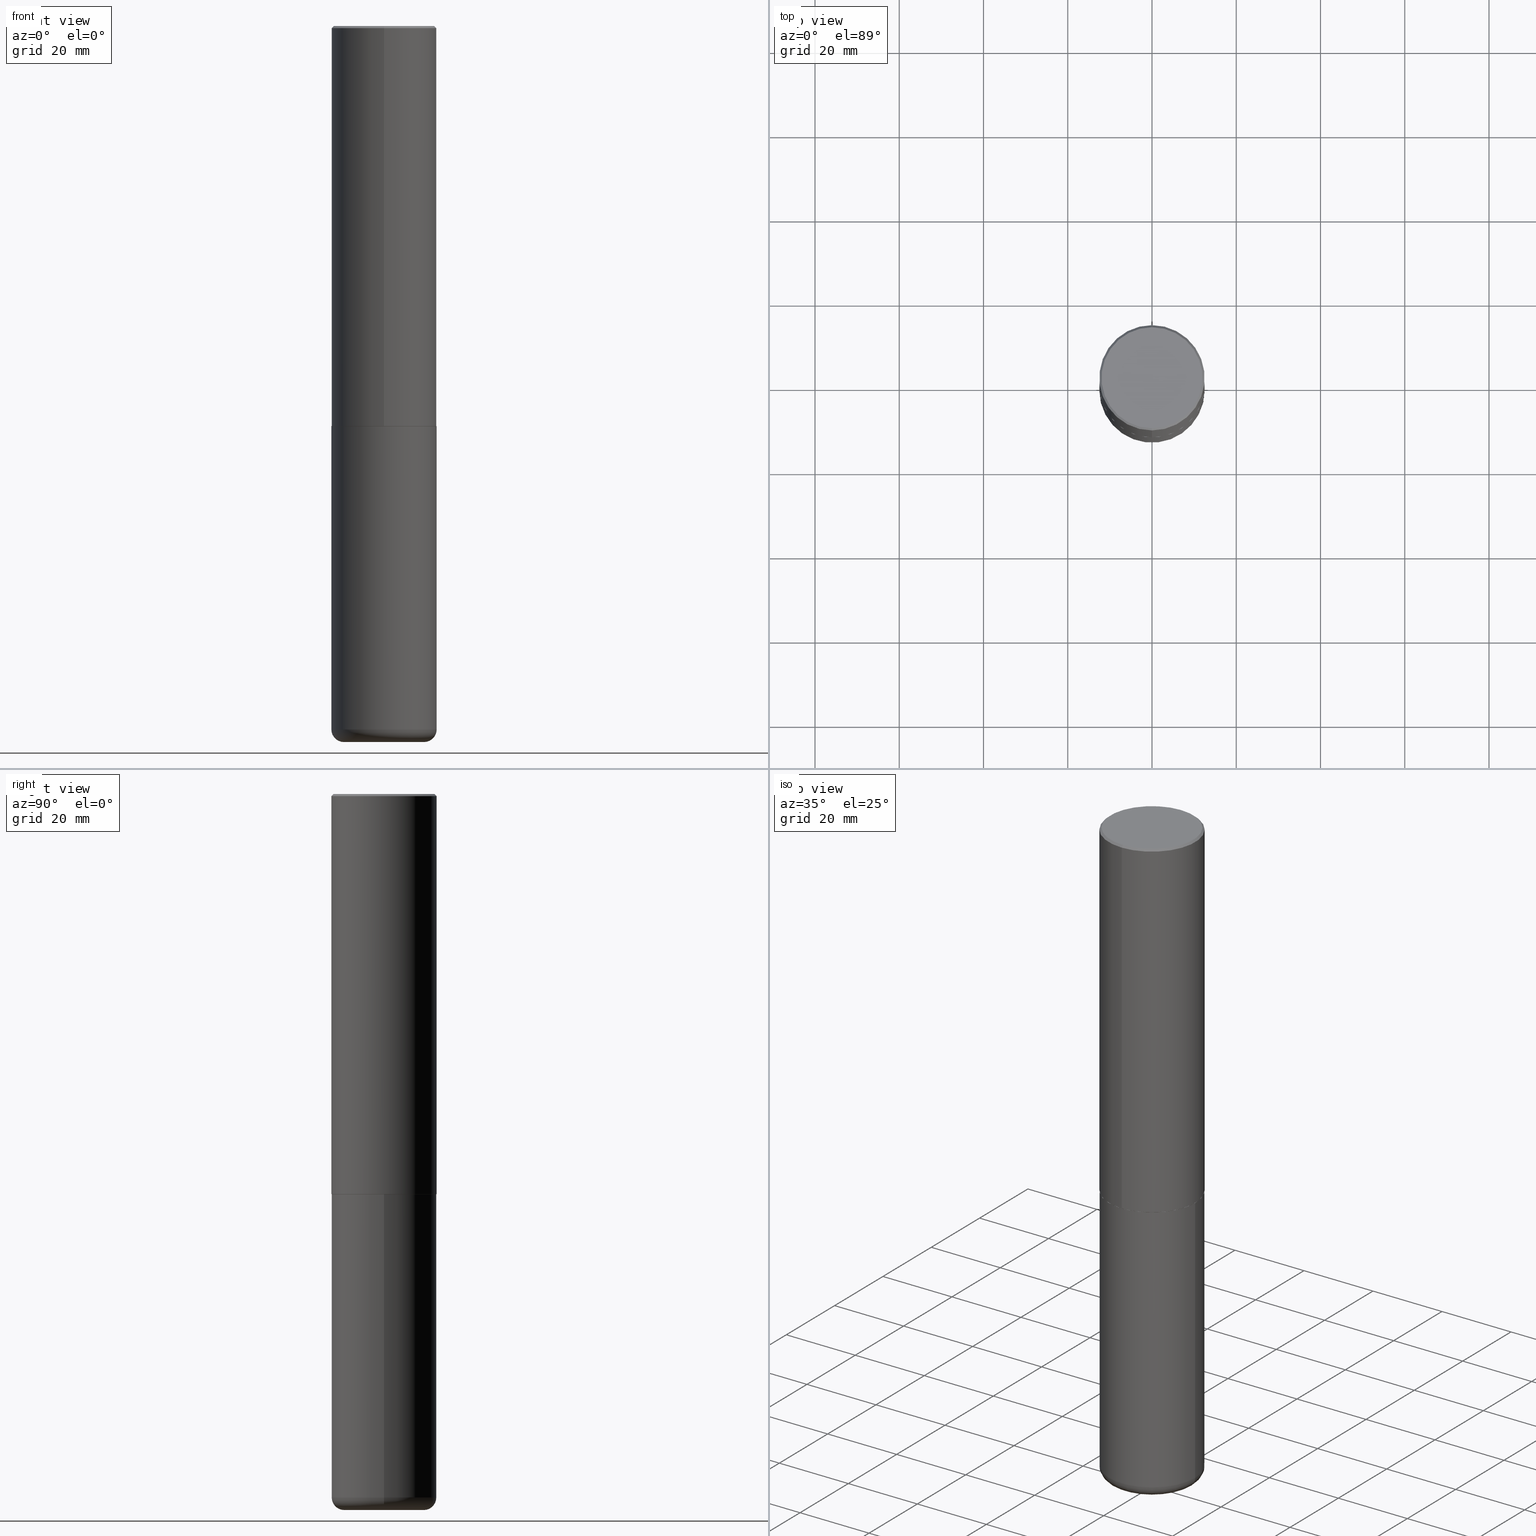
[diagram: canonical four-view strip — front | top / right | iso, engineering-drawing reading convention]
A machine part, canonical four-view strip (front | top / right | iso — engineering-drawing reading convention). The complete STEP part file that produces these views, byte-faithful:
ISO-10303-21;
HEADER;
FILE_DESCRIPTION (( 'STEP AP203' ),
    '1' );
FILE_NAME ('47625.STEP',
    '2024-03-06T19:43:26',
    ( '' ),
    ( '' ),
    'SwSTEP 2.0',
    'SolidWorks 2023',
    '' );
FILE_SCHEMA (( 'CONFIG_CONTROL_DESIGN' ));
ENDSEC;

DATA;
#1 = ORIENTED_EDGE ( 'NONE', *, *, #39, .T. ) ;
#2 = DIRECTION ( 'NONE',  ( -2.445468806185136597E-29, 3.491481338843145583E-15, 1.000000000000000000 ) ) ;
#3 = VERTEX_POINT ( 'NONE', #71 ) ;
#4 = DIRECTION ( 'NONE',  ( 2.438088387897960049E-29, -3.491481338843145188E-15, -1.000000000000000000 ) ) ;
#5 = AXIS2_PLACEMENT_3D ( 'NONE', #241, #147, #365 ) ;
#6 = ORIENTED_EDGE ( 'NONE', *, *, #307, .F. ) ;
#7 = APPROVAL_DATE_TIME ( #145, #360 ) ;
#8 = ADVANCED_FACE ( 'NONE', ( #265 ), #13, .T. ) ;
#9 = ORIENTED_EDGE ( 'NONE', *, *, #59, .F. ) ;
#10 = CARTESIAN_POINT ( 'NONE',  ( 9.146297882013029477E-29, -1.305848935540725085E-14, -3.740100000000000424 ) ) ;
#11 = CARTESIAN_POINT ( 'NONE',  ( 9.148197060908621523E-29, -1.305576962313420868E-14, -3.740099999999999980 ) ) ;
#12 = CIRCLE ( 'NONE', #33, 0.4721499999999996255 ) ;
#13 = TOROIDAL_SURFACE ( 'NONE', #284, 0.3740499999999999381, 0.1181000000000000660 ) ;
#14 = AXIS2_PLACEMENT_3D ( 'NONE', #218, #257, #93 ) ;
#15 = EDGE_CURVE ( 'NONE', #327, #346, #12, .T. ) ;
#16 = DIRECTION ( 'NONE',  ( -2.445976594451651952E-29, 3.490754157143982552E-15, 1.000000000000000000 ) ) ;
#17 = PLANE ( 'NONE',  #383 ) ;
#18 = PRODUCT_DEFINITION ( 'UNKNOWN', '', #179, #183 ) ;
#19 = CARTESIAN_POINT ( 'NONE',  ( 0.4921499999999999764, -3.436665081823295777E-15, 2.399810400207969603E-29 ) ) ;
#20 = AXIS2_PLACEMENT_3D ( 'NONE', #315, #377, #53 ) ;
#21 = LOCAL_TIME ( 14, 43, 26.00000000000000000, #350 ) ;
#22 = DIRECTION ( 'NONE',  ( -6.982962677686265922E-15, -1.000000000000000000, 3.490754157143982946E-15 ) ) ;
#23 = CARTESIAN_POINT ( 'NONE',  ( 1.607846830690603466E-28, -2.295579150662591525E-14, -6.574799999999999756 ) ) ;
#24 = ORIENTED_EDGE ( 'NONE', *, *, #326, .F. ) ;
#25 = LINE ( 'NONE', #219, #363 ) ;
#26 = CC_DESIGN_PERSON_AND_ORGANIZATION_ASSIGNMENT ( #361, #40, ( #179 ) ) ;
#27 = CARTESIAN_POINT ( 'NONE',  ( -3.376394089603257868E-15, -0.4921499999999999764, -0.01999999999999839059 ) ) ;
#28 = CARTESIAN_POINT ( 'NONE',  ( 9.148197060908621523E-29, -1.305576962313420868E-14, -3.740099999999999980 ) ) ;
#29 = PERSON_AND_ORGANIZATION ( #347, #369 ) ;
#30 = EDGE_LOOP ( 'NONE', ( #38, #205, #190, #207 ) ) ;
#31 = ADVANCED_BREP_SHAPE_REPRESENTATION ( '47625', ( #328, #52, #255 ), #195 ) ;
#32 = FACE_OUTER_BOUND ( 'NONE', #394, .T. ) ;
#33 = AXIS2_PLACEMENT_3D ( 'NONE', #165, #290, #44 ) ;
#34 = EDGE_LOOP ( 'NONE', ( #233, #9 ) ) ;
#35 = DIRECTION ( 'NONE',  ( 1.000000000000000000, 0.000000000000000000, 0.000000000000000000 ) ) ;
#36 = EDGE_LOOP ( 'NONE', ( #272, #378 ) ) ;
#37 = LENGTH_MEASURE_WITH_UNIT ( LENGTH_MEASURE( 0.02539999999999999897 ), #65 );
#38 = ORIENTED_EDGE ( 'NONE', *, *, #366, .T. ) ;
#39 = EDGE_CURVE ( 'NONE', #391, #294, #398, .T. ) ;
#40 = PERSON_AND_ORGANIZATION_ROLE ( 'design_supplier' ) ;
#41 = AXIS2_PLACEMENT_3D ( 'NONE', #23, #316, #338 ) ;
#42 = DIRECTION ( 'NONE',  ( 1.000000000000000000, -6.982962677686266711E-15, 4.883557194083112340E-29 ) ) ;
#43 = APPROVAL_PERSON_ORGANIZATION ( #344, #283, #188 ) ;
#44 = DIRECTION ( 'NONE',  ( -6.982962677686265922E-15, -1.000000000000000000, 3.490754157143982946E-15 ) ) ;
#45 = CC_DESIGN_PERSON_AND_ORGANIZATION_ASSIGNMENT ( #229, #98, ( #18 ) ) ;
#46 = DIRECTION ( 'NONE',  ( -6.982962677686265922E-15, -1.000000000000000000, 3.486624039460257331E-15 ) ) ;
#47 = CARTESIAN_POINT ( 'NONE',  ( 4.891953188903329688E-31, -6.981508314288001687E-17, -0.02000000000000010797 ) ) ;
#48 = AXIS2_PLACEMENT_3D ( 'NONE', #158, #186, #250 ) ;
#49 = CARTESIAN_POINT ( 'NONE',  ( 9.148197060908621523E-29, -1.305576962313420868E-14, -3.740099999999999980 ) ) ;
#50 = EDGE_CURVE ( 'NONE', #94, #359, #194, .T. ) ;
#51 = CARTESIAN_POINT ( 'NONE',  ( 1.607846830690603466E-28, -2.295579150662591525E-14, -6.574799999999999756 ) ) ;
#52 = MANIFOLD_SOLID_BREP ( 'Body-Move/Copy2[2]', #375 ) ;
#53 = DIRECTION ( 'NONE',  ( -6.982962677686265922E-15, -1.000000000000000000, 3.330506545156063496E-15 ) ) ;
#54 = AXIS2_PLACEMENT_3D ( 'NONE', #285, #156, #196 ) ;
#55 = APPROVAL_PERSON_ORGANIZATION ( #29, #360, #262 ) ;
#56 = LINE ( 'NONE', #225, #153 ) ;
#57 = VERTEX_POINT ( 'NONE', #114 ) ;
#58 = CARTESIAN_POINT ( 'NONE',  ( 0.4921499999999999764, -1.649515443723054663E-14, -3.740100000000000424 ) ) ;
#59 = EDGE_CURVE ( 'NONE', #356, #235, #368, .T. ) ;
#60 = CYLINDRICAL_SURFACE ( 'NONE', #339, 0.4921499999999999764 ) ;
#61 = CIRCLE ( 'NONE', #20, 0.4921500000000003650 ) ;
#62 = DIRECTION ( 'NONE',  ( 6.982962677686265922E-15, 1.000000000000000000, -3.490754157143982552E-15 ) ) ;
#63 = CALENDAR_DATE ( 2024, 6, 3 ) ;
#64 = ORIENTED_EDGE ( 'NONE', *, *, #236, .F. ) ;
#65 =( LENGTH_UNIT ( ) NAMED_UNIT ( * ) SI_UNIT ( $, .METRE. ) );
#66 = ORIENTED_EDGE ( 'NONE', *, *, #269, .T. ) ;
#67 = AXIS2_PLACEMENT_3D ( 'NONE', #402, #216, #82 ) ;
#68 = CIRCLE ( 'NONE', #213, 0.4721499999999996255 ) ;
#69 = ORIENTED_EDGE ( 'NONE', *, *, #355, .F. ) ;
#70 = DIRECTION ( 'NONE',  ( 1.000000000000000000, -6.982962677686265922E-15, 4.876176775795935793E-29 ) ) ;
#71 = CARTESIAN_POINT ( 'NONE',  ( -0.4921499999999999764, -1.451020435697325173E-14, -3.740100000000000424 ) ) ;
#72 = ADVANCED_FACE ( 'NONE', ( #212 ), #120, .T. ) ;
#73 = PERSON_AND_ORGANIZATION ( #347, #369 ) ;
#74 = ORIENTED_EDGE ( 'NONE', *, *, #39, .F. ) ;
#75 = COORDINATED_UNIVERSAL_TIME_OFFSET ( 5, 0, .BEHIND. ) ;
#76 = CIRCLE ( 'NONE', #297, 0.4911499999999999755 ) ;
#77 = DIRECTION ( 'NONE',  ( 1.000000000000000000, -6.982962677686270655E-15, 0.000000000000000000 ) ) ;
#78 = CC_DESIGN_APPROVAL ( #360, ( #179 ) ) ;
#79 = APPROVAL ( #204, 'UNSPECIFIED' ) ;
#80 = DIRECTION ( 'NONE',  ( 1.000000000000000000, -6.982962677686265922E-15, 0.000000000000000000 ) ) ;
#81 = LINE ( 'NONE', #19, #403 ) ;
#82 = DIRECTION ( 'NONE',  ( -6.982962677686265922E-15, -1.000000000000000000, 3.486624039460257331E-15 ) ) ;
#83 = CIRCLE ( 'NONE', #349, 0.3740499999999999381 ) ;
#84 = CARTESIAN_POINT ( 'NONE',  ( 0.3740499999999999381, -2.556776869621446119E-14, -6.574799999999999756 ) ) ;
#85 = EDGE_CURVE ( 'NONE', #318, #3, #415, .T. ) ;
#86 = DIRECTION ( 'NONE',  ( -6.982962677686265922E-15, -1.000000000000000000, 3.337287582609300506E-15 ) ) ;
#87 = APPROVAL_DATE_TIME ( #128, #283 ) ;
#88 = AXIS2_PLACEMENT_3D ( 'NONE', #337, #214, #276 ) ;
#89 = ADVANCED_FACE ( 'NONE', ( #278 ), #119, .T. ) ;
#90 = LINE ( 'NONE', #371, #148 ) ;
#91 = EDGE_LOOP ( 'NONE', ( #24, #228, #132, #351 ) ) ;
#92 = CARTESIAN_POINT ( 'NONE',  ( -0.3740499999999999381, -2.008460289110760576E-14, -6.692899999999999849 ) ) ;
#93 = DIRECTION ( 'NONE',  ( -6.982962677686265922E-15, -1.000000000000000000, 3.330506545156063496E-15 ) ) ;
#94 = VERTEX_POINT ( 'NONE', #244 ) ;
#95 = EDGE_CURVE ( 'NONE', #3, #318, #275, .T. ) ;
#96 = AXIS2_PLACEMENT_3D ( 'NONE', #84, #273, #77 ) ;
#97 = VECTOR ( 'NONE', #389, 39.37007874015748854 ) ;
#98 = PERSON_AND_ORGANIZATION_ROLE ( 'creator' ) ;
#99 = VERTEX_POINT ( 'NONE', #397 ) ;
#100 =( CONVERSION_BASED_UNIT ( 'INCH', #37 ) LENGTH_UNIT ( ) NAMED_UNIT ( #215 ) );
#101 = ORIENTED_EDGE ( 'NONE', *, *, #59, .T. ) ;
#102 = DIRECTION ( 'NONE',  ( 2.438088387897960049E-29, -3.491481338843145188E-15, -1.000000000000000000 ) ) ;
#103 = ORIENTED_EDGE ( 'NONE', *, *, #124, .T. ) ;
#104 = CIRCLE ( 'NONE', #14, 0.4921500000000003650 ) ;
#105 = LOCAL_TIME ( 14, 43, 26.00000000000000000, #372 ) ;
#106 = EDGE_CURVE ( 'NONE', #356, #263, #286, .T. ) ;
#107 = ORIENTED_EDGE ( 'NONE', *, *, #274, .F. ) ;
#108 = DIRECTION ( 'NONE',  ( 0.000000000000000000, 0.000000000000000000, 1.000000000000000000 ) ) ;
#109 = ORIENTED_EDGE ( 'NONE', *, *, #140, .F. ) ;
#110 = PERSON_AND_ORGANIZATION ( #347, #369 ) ;
#111 = FACE_OUTER_BOUND ( 'NONE', #231, .T. ) ;
#112 = EDGE_CURVE ( 'NONE', #327, #391, #396, .T. ) ;
#113 = AXIS2_PLACEMENT_3D ( 'NONE', #392, #102, #230 ) ;
#114 = CARTESIAN_POINT ( 'NONE',  ( -3.436665081823207030E-15, -0.4921500000000134101, -3.739099999999998758 ) ) ;
#115 = APPLICATION_CONTEXT ( 'configuration controlled 3d designs of mechanical parts and assemblies' ) ;
#116 = CARTESIAN_POINT ( 'NONE',  ( 1.636727817291649966E-28, -2.336813545274328780E-14, -6.692899999999999849 ) ) ;
#117 = DIRECTION ( 'NONE',  ( 7.105427357601001859E-15, 1.000000000000000000, -3.491481338843145583E-15 ) ) ;
#118 = ADVANCED_FACE ( 'NONE', ( #111 ), #243, .T. ) ;
#119 = CYLINDRICAL_SURFACE ( 'NONE', #88, 0.4921499999999999764 ) ;
#120 = CONICAL_SURFACE ( 'NONE', #143, 0.4911499999999999755, 0.7853981633980288146 ) ;
#121 = FACE_OUTER_BOUND ( 'NONE', #292, .T. ) ;
#122 = CARTESIAN_POINT ( 'NONE',  ( 9.148197060908621523E-29, -1.305576962313420868E-14, -3.740099999999999980 ) ) ;
#123 = CALENDAR_DATE ( 2024, 6, 3 ) ;
#124 = EDGE_CURVE ( 'NONE', #235, #99, #310, .T. ) ;
#125 = DIRECTION ( 'NONE',  ( -6.982962677686265922E-15, -1.000000000000000000, 3.337287582609300506E-15 ) ) ;
#126 = AXIS2_PLACEMENT_3D ( 'NONE', #335, #210, #80 ) ;
#127 = CARTESIAN_POINT ( 'NONE',  ( 4.891953188903329688E-31, -6.981508314288001687E-17, -0.02000000000000010797 ) ) ;
#128 = DATE_AND_TIME ( #123, #105 ) ;
#129 = FACE_OUTER_BOUND ( 'NONE', #325, .T. ) ;
#130 = EDGE_CURVE ( 'NONE', #263, #3, #182, .T. ) ;
#131 = DATE_TIME_ROLE ( 'classification_date' ) ;
#132 = ORIENTED_EDGE ( 'NONE', *, *, #173, .T. ) ;
#133 = PRODUCT_DEFINITION_SHAPE ( 'NONE', 'NONE',  #18 ) ;
#134 = MECHANICAL_CONTEXT ( 'NONE', #115, 'mechanical' ) ;
#135 = AXIS2_PLACEMENT_3D ( 'NONE', #184, #117, #364 ) ;
#136 = ORIENTED_EDGE ( 'NONE', *, *, #248, .T. ) ;
#137 = DATE_TIME_ROLE ( 'creation_date' ) ;
#138 = APPLICATION_CONTEXT ( 'configuration controlled 3d designs of mechanical parts and assemblies' ) ;
#139 = ORIENTED_EDGE ( 'NONE', *, *, #307, .T. ) ;
#140 = EDGE_CURVE ( 'NONE', #263, #99, #303, .T. ) ;
#141 = APPROVAL_DATE_TIME ( #293, #79 ) ;
#142 = ORIENTED_EDGE ( 'NONE', *, *, #95, .T. ) ;
#143 = AXIS2_PLACEMENT_3D ( 'NONE', #11, #16, #211 ) ;
#144 = EDGE_LOOP ( 'NONE', ( #417, #171, #358, #270 ) ) ;
#145 = DATE_AND_TIME ( #352, #226 ) ;
#146 = EDGE_LOOP ( 'NONE', ( #321, #353, #267, #1 ) ) ;
#147 = DIRECTION ( 'NONE',  ( -2.445976594451651952E-29, 3.490754157143982552E-15, 1.000000000000000000 ) ) ;
#148 = VECTOR ( 'NONE', #221, 39.37007874015748143 ) ;
#149 = DIRECTION ( 'NONE',  ( 1.000000000000000000, -6.982962677686265133E-15, 0.000000000000000000 ) ) ;
#150 = DIRECTION ( 'NONE',  ( 1.000000000000000000, -6.982962677686265922E-15, 0.000000000000000000 ) ) ;
#151 = DIRECTION ( 'NONE',  ( -2.445976594451651952E-29, 3.490754157143982552E-15, 1.000000000000000000 ) ) ;
#152 = FACE_OUTER_BOUND ( 'NONE', #146, .T. ) ;
#153 = VECTOR ( 'NONE', #281, 39.37007874015748143 ) ;
#154 = CARTESIAN_POINT ( 'NONE',  ( 3.366835455046432084E-15, 0.4721499999999996255, -1.426540264649568516E-15 ) ) ;
#155 = ADVANCED_FACE ( 'NONE', ( #238 ), #178, .T. ) ;
#156 = DIRECTION ( 'NONE',  ( -2.445976594451651952E-29, 3.490754157143982552E-15, 1.000000000000000000 ) ) ;
#157 = ORIENTED_EDGE ( 'NONE', *, *, #50, .F. ) ;
#158 = CARTESIAN_POINT ( 'NONE',  ( 1.607846830690603466E-28, -2.295579150662591525E-14, -6.574799999999999756 ) ) ;
#159 = CIRCLE ( 'NONE', #334, 0.4921499999999999209 ) ;
#160 = CC_DESIGN_APPROVAL ( #283, ( #416 ) ) ;
#161 = FACE_OUTER_BOUND ( 'NONE', #192, .T. ) ;
#162 = ORIENTED_EDGE ( 'NONE', *, *, #242, .F. ) ;
#163 = CC_DESIGN_PERSON_AND_ORGANIZATION_ASSIGNMENT ( #170, #258, ( #220 ) ) ;
#164 =( NAMED_UNIT ( * ) PLANE_ANGLE_UNIT ( ) SI_UNIT ( $, .RADIAN. ) );
#165 = CARTESIAN_POINT ( 'NONE',  ( -5.420756467185317189E-45, 7.736185299407739239E-31, 2.216193106459615290E-16 ) ) ;
#166 = AXIS2_PLACEMENT_3D ( 'NONE', #387, #4, #354 ) ;
#167 = PLANE ( 'NONE',  #166 ) ;
#168 = ORIENTED_EDGE ( 'NONE', *, *, #274, .T. ) ;
#169 = ADVANCED_FACE ( 'NONE', ( #306 ), #17, .F. ) ;
#170 = PERSON_AND_ORGANIZATION ( #347, #369 ) ;
#171 = ORIENTED_EDGE ( 'NONE', *, *, #140, .T. ) ;
#172 = EDGE_LOOP ( 'NONE', ( #6, #157 ) ) ;
#173 = EDGE_CURVE ( 'NONE', #294, #391, #159, .T. ) ;
#174 = PERSON_AND_ORGANIZATION ( #347, #369 ) ;
#175 = ORIENTED_EDGE ( 'NONE', *, *, #173, .F. ) ;
#176 = DIRECTION ( 'NONE',  ( -2.445468806185136597E-29, 3.491481338843145583E-15, 1.000000000000000000 ) ) ;
#177 = DIRECTION ( 'NONE',  ( -2.445468806185136877E-29, 3.491481338843145188E-15, 1.000000000000000000 ) ) ;
#178 = CONICAL_SURFACE ( 'NONE', #232, 0.4921499999999999209, 0.7853981633974467247 ) ;
#179 = PRODUCT_DEFINITION_FORMATION_WITH_SPECIFIED_SOURCE ( 'ANY', '', #220, .NOT_KNOWN. ) ;
#180 = CARTESIAN_POINT ( 'NONE',  ( 9.148197060908621523E-29, -1.305576962313420868E-14, -3.740099999999999980 ) ) ;
#181 = EDGE_CURVE ( 'NONE', #99, #318, #81, .T. ) ;
#182 = LINE ( 'NONE', #247, #202 ) ;
#183 = DESIGN_CONTEXT ( 'detailed design', #138, 'design' ) ;
#184 = CARTESIAN_POINT ( 'NONE',  ( -0.3740499999999999381, -2.029800640351526055E-14, -6.574799999999999756 ) ) ;
#185 = ADVANCED_FACE ( 'NONE', ( #152 ), #253, .T. ) ;
#186 = DIRECTION ( 'NONE',  ( -2.445468806185136597E-29, 3.491481338843145583E-15, 1.000000000000000000 ) ) ;
#187 = VECTOR ( 'NONE', #277, 39.37007874015748143 ) ;
#188 = APPROVAL_ROLE ( '' ) ;
#189 = CARTESIAN_POINT ( 'NONE',  ( 0.3740499999999999381, -2.598011264233183690E-14, -6.692899999999999849 ) ) ;
#190 = ORIENTED_EDGE ( 'NONE', *, *, #269, .F. ) ;
#191 = DIRECTION ( 'NONE',  ( -2.445976594451651672E-29, 3.490754157143982552E-15, 1.000000000000000000 ) ) ;
#192 = EDGE_LOOP ( 'NONE', ( #385, #101, #103, #109 ) ) ;
#193 = CARTESIAN_POINT ( 'NONE',  ( 3.297005828269567997E-15, 0.4721499999999996255, -1.537349919972549256E-15 ) ) ;
#194 = CIRCLE ( 'NONE', #268, 0.4911499999999999755 ) ;
#195 =( GEOMETRIC_REPRESENTATION_CONTEXT ( 3 ) GLOBAL_UNCERTAINTY_ASSIGNED_CONTEXT ( ( #408 ) ) GLOBAL_UNIT_ASSIGNED_CONTEXT ( ( #100, #164, #199 ) ) REPRESENTATION_CONTEXT ( 'NONE', 'WORKASPACE' ) );
#196 = DIRECTION ( 'NONE',  ( -6.982962677686265922E-15, -1.000000000000000000, 3.490754157143982552E-15 ) ) ;
#197 = DATE_AND_TIME ( #63, #21 ) ;
#198 = EDGE_LOOP ( 'NONE', ( #66, #388, #222, #224 ) ) ;
#199 =( NAMED_UNIT ( * ) SI_UNIT ( $, .STERADIAN. ) SOLID_ANGLE_UNIT ( ) );
#200 = ADVANCED_FACE ( 'NONE', ( #379 ), #256, .F. ) ;
#201 = ORIENTED_EDGE ( 'NONE', *, *, #50, .T. ) ;
#202 = VECTOR ( 'NONE', #370, 39.37007874015748143 ) ;
#203 = ORIENTED_EDGE ( 'NONE', *, *, #236, .T. ) ;
#204 = APPROVAL_STATUS ( 'not_yet_approved' ) ;
#205 = ORIENTED_EDGE ( 'NONE', *, *, #106, .T. ) ;
#206 = APPROVAL_ROLE ( '' ) ;
#207 = ORIENTED_EDGE ( 'NONE', *, *, #124, .F. ) ;
#208 = AXIS2_PLACEMENT_3D ( 'NONE', #193, #380, #62 ) ;
#209 = CALENDAR_DATE ( 2024, 6, 3 ) ;
#210 = DIRECTION ( 'NONE',  ( -2.445468806185136597E-29, 3.491481338843145583E-15, 1.000000000000000000 ) ) ;
#211 = DIRECTION ( 'NONE',  ( -6.982962677686265922E-15, -1.000000000000000000, 3.337287582609300506E-15 ) ) ;
#212 = FACE_OUTER_BOUND ( 'NONE', #299, .T. ) ;
#213 = AXIS2_PLACEMENT_3D ( 'NONE', #410, #348, #22 ) ;
#214 = DIRECTION ( 'NONE',  ( -2.445468806185136597E-29, 3.491481338843145583E-15, 1.000000000000000000 ) ) ;
#215 = DIMENSIONAL_EXPONENTS ( 1.000000000000000000, 0.000000000000000000, 0.000000000000000000, 0.000000000000000000, 0.000000000000000000, 0.000000000000000000, 0.000000000000000000 ) ;
#216 = DIRECTION ( 'NONE',  ( -2.445976594451651952E-29, 3.490754157143982552E-15, 1.000000000000000000 ) ) ;
#217 = CC_DESIGN_PERSON_AND_ORGANIZATION_ASSIGNMENT ( #110, #237, ( #416 ) ) ;
#218 = CARTESIAN_POINT ( 'NONE',  ( 9.145751084314172604E-29, -1.305227886897706845E-14, -3.739100000000000534 ) ) ;
#219 = CARTESIAN_POINT ( 'NONE',  ( -3.429682119145517860E-15, -0.4911500000000130206, -3.740099999999998204 ) ) ;
#220 = PRODUCT ( '47625', '47625', '', ( #134 ) ) ;
#221 = DIRECTION ( 'NONE',  ( -2.445976594451651672E-29, 3.490754157143982552E-15, 1.000000000000000000 ) ) ;
#222 = ORIENTED_EDGE ( 'NONE', *, *, #85, .F. ) ;
#223 = DIRECTION ( 'NONE',  ( 1.000000000000000000, -6.982962677686265133E-15, 0.000000000000000000 ) ) ;
#224 = ORIENTED_EDGE ( 'NONE', *, *, #181, .F. ) ;
#225 = CARTESIAN_POINT ( 'NONE',  ( 3.489830646685823002E-15, 0.4911499999999869304, -3.740100000000001312 ) ) ;
#226 = LOCAL_TIME ( 14, 43, 26.00000000000000000, #264 ) ;
#227 = PLANE ( 'NONE',  #113 ) ;
#228 = ORIENTED_EDGE ( 'NONE', *, *, #405, .T. ) ;
#229 = PERSON_AND_ORGANIZATION ( #347, #369 ) ;
#230 = DIRECTION ( 'NONE',  ( -1.000000000000000000, 6.982962677686265922E-15, -4.876176775795935793E-29 ) ) ;
#231 = EDGE_LOOP ( 'NONE', ( #168, #412, #175, #254 ) ) ;
#232 = AXIS2_PLACEMENT_3D ( 'NONE', #47, #302, #401 ) ;
#233 = ORIENTED_EDGE ( 'NONE', *, *, #366, .F. ) ;
#234 = LINE ( 'NONE', #295, #97 ) ;
#235 = VERTEX_POINT ( 'NONE', #189 ) ;
#236 = EDGE_CURVE ( 'NONE', #94, #323, #56, .T. ) ;
#237 = PERSON_AND_ORGANIZATION_ROLE ( 'classification_officer' ) ;
#238 = FACE_OUTER_BOUND ( 'NONE', #91, .T. ) ;
#239 = VECTOR ( 'NONE', #191, 39.37007874015748143 ) ;
#240 = APPROVAL_PERSON_ORGANIZATION ( #73, #79, #206 ) ;
#241 = CARTESIAN_POINT ( 'NONE',  ( 0.000000000000000000, 0.000000000000000000, 0.000000000000000000 ) ) ;
#242 = EDGE_CURVE ( 'NONE', #323, #391, #90, .T. ) ;
#243 = CYLINDRICAL_SURFACE ( 'NONE', #5, 0.4921500000000000874 ) ;
#244 = CARTESIAN_POINT ( 'NONE',  ( 3.493383360364624690E-15, 0.4911499999999869304, -3.740100000000001312 ) ) ;
#245 = AXIS2_PLACEMENT_3D ( 'NONE', #28, #249, #86 ) ;
#246 = CC_DESIGN_APPROVAL ( #79, ( #18 ) ) ;
#247 = CARTESIAN_POINT ( 'NONE',  ( -0.4921499999999999764, 3.496936074043332897E-15, -2.420853904668951509E-29 ) ) ;
#248 = EDGE_CURVE ( 'NONE', #57, #294, #404, .T. ) ;
#249 = DIRECTION ( 'NONE',  ( -2.445976594451651952E-29, 3.490754157143982552E-15, 1.000000000000000000 ) ) ;
#250 = DIRECTION ( 'NONE',  ( 1.000000000000000000, -6.982962677686266711E-15, 4.883557194083112340E-29 ) ) ;
#251 = SHAPE_DEFINITION_REPRESENTATION ( #133, #31 ) ;
#252 = DIRECTION ( 'NONE',  ( -2.445468806185136597E-29, 3.491481338843145583E-15, 1.000000000000000000 ) ) ;
#253 = CONICAL_SURFACE ( 'NONE', #330, 0.4921499999999999209, 0.7853981633974467247 ) ;
#254 = ORIENTED_EDGE ( 'NONE', *, *, #248, .F. ) ;
#255 = AXIS2_PLACEMENT_3D ( 'NONE', #291, #108, #35 ) ;
#256 = PLANE ( 'NONE',  #208 ) ;
#257 = DIRECTION ( 'NONE',  ( -2.445976594451651952E-29, 3.490754157143982552E-15, 1.000000000000000000 ) ) ;
#258 = PERSON_AND_ORGANIZATION_ROLE ( 'design_owner' ) ;
#259 = CONICAL_SURFACE ( 'NONE', #245, 0.4911499999999999755, 0.7853981633980288146 ) ;
#260 = ADVANCED_FACE ( 'NONE', ( #121 ), #259, .T. ) ;
#261 = LOCAL_TIME ( 14, 43, 26.00000000000000000, #75 ) ;
#262 = APPROVAL_ROLE ( '' ) ;
#263 = VERTEX_POINT ( 'NONE', #407 ) ;
#264 = COORDINATED_UNIVERSAL_TIME_OFFSET ( 5, 0, .BEHIND. ) ;
#265 = FACE_OUTER_BOUND ( 'NONE', #30, .T. ) ;
#266 = CARTESIAN_POINT ( 'NONE',  ( 3.436665081823295777E-15, 0.4921499999999998098, -0.02000000000000182188 ) ) ;
#267 = ORIENTED_EDGE ( 'NONE', *, *, #112, .T. ) ;
#268 = AXIS2_PLACEMENT_3D ( 'NONE', #49, #151, #367 ) ;
#269 = EDGE_CURVE ( 'NONE', #99, #263, #304, .T. ) ;
#270 = ORIENTED_EDGE ( 'NONE', *, *, #95, .F. ) ;
#271 = PERSON_AND_ORGANIZATION_ROLE ( 'creator' ) ;
#272 = ORIENTED_EDGE ( 'NONE', *, *, #15, .T. ) ;
#273 = DIRECTION ( 'NONE',  ( -6.982962677686266711E-15, -1.000000000000000000, 3.491481338843145583E-15 ) ) ;
#274 = EDGE_CURVE ( 'NONE', #57, #323, #61, .T. ) ;
#275 = CIRCLE ( 'NONE', #126, 0.4921499999999999764 ) ;
#276 = DIRECTION ( 'NONE',  ( 1.000000000000000000, -6.982962677686265922E-15, 4.876176775795935793E-29 ) ) ;
#277 = DIRECTION ( 'NONE',  ( 4.937700262164540154E-15, 0.7071067811865440200, -0.7071067811865511255 ) ) ;
#278 = FACE_OUTER_BOUND ( 'NONE', #198, .T. ) ;
#279 = DIRECTION ( 'NONE',  ( 6.982962677686265922E-15, 1.000000000000000000, -3.486624039460257331E-15 ) ) ;
#280 = DIRECTION ( 'NONE',  ( 2.445976594451651952E-29, -3.490754157143982552E-15, -1.000000000000000000 ) ) ;
#281 = DIRECTION ( 'NONE',  ( 5.024295867790978808E-15, 0.7071067811869604647, 0.7071067811861345698 ) ) ;
#282 = ORIENTED_EDGE ( 'NONE', *, *, #313, .T. ) ;
#283 = APPROVAL ( #411, 'UNSPECIFIED' ) ;
#284 = AXIS2_PLACEMENT_3D ( 'NONE', #329, #296, #42 ) ;
#285 = CARTESIAN_POINT ( 'NONE',  ( 0.000000000000000000, 0.000000000000000000, 0.000000000000000000 ) ) ;
#286 = CIRCLE ( 'NONE', #135, 0.1181000000000000383 ) ;
#287 = CARTESIAN_POINT ( 'NONE',  ( 0.000000000000000000, 0.000000000000000000, 0.000000000000000000 ) ) ;
#288 = CC_DESIGN_PERSON_AND_ORGANIZATION_ASSIGNMENT ( #174, #271, ( #179 ) ) ;
#289 = APPROVAL_STATUS ( 'not_yet_approved' ) ;
#290 = DIRECTION ( 'NONE',  ( -2.445976594451651952E-29, 3.490754157143982552E-15, 1.000000000000000000 ) ) ;
#291 = CARTESIAN_POINT ( 'NONE',  ( 0.000000000000000000, 0.000000000000000000, 0.000000000000000000 ) ) ;
#292 = EDGE_LOOP ( 'NONE', ( #64, #201, #381, #342 ) ) ;
#293 = DATE_AND_TIME ( #320, #357 ) ;
#294 = VERTEX_POINT ( 'NONE', #27 ) ;
#295 = CARTESIAN_POINT ( 'NONE',  ( -3.376394089603257868E-15, -0.4921499999999999764, -0.01999999999999839059 ) ) ;
#296 = DIRECTION ( 'NONE',  ( -2.445468806185136597E-29, 3.491481338843145583E-15, 1.000000000000000000 ) ) ;
#297 = AXIS2_PLACEMENT_3D ( 'NONE', #122, #311, #125 ) ;
#298 = DATE_AND_TIME ( #209, #261 ) ;
#299 = EDGE_LOOP ( 'NONE', ( #139, #203, #107, #69 ) ) ;
#300 = ADVANCED_FACE ( 'NONE', ( #161 ), #376, .T. ) ;
#301 = DIRECTION ( 'NONE',  ( 1.000000000000000000, -6.982962677686265133E-15, 0.000000000000000000 ) ) ;
#302 = DIRECTION ( 'NONE',  ( 2.445976594451651952E-29, -3.490754157143982552E-15, -1.000000000000000000 ) ) ;
#303 = CIRCLE ( 'NONE', #324, 0.4921500000000000319 ) ;
#304 = CIRCLE ( 'NONE', #41, 0.4921500000000000319 ) ;
#305 = DIRECTION ( 'NONE',  ( -2.445468806185136597E-29, 3.491481338843145583E-15, 1.000000000000000000 ) ) ;
#306 = FACE_OUTER_BOUND ( 'NONE', #172, .T. ) ;
#307 = EDGE_CURVE ( 'NONE', #359, #94, #76, .T. ) ;
#308 = DIRECTION ( 'NONE',  ( -2.445468806185136597E-29, 3.491481338843145583E-15, 1.000000000000000000 ) ) ;
#309 = CLOSED_SHELL ( 'NONE', ( #89, #8, #393, #373, #300, #400 ) ) ;
#310 = CIRCLE ( 'NONE', #96, 0.1181000000000000383 ) ;
#311 = DIRECTION ( 'NONE',  ( -2.445976594451651952E-29, 3.490754157143982552E-15, 1.000000000000000000 ) ) ;
#312 = CARTESIAN_POINT ( 'NONE',  ( 1.636727817291649966E-28, -2.336813545274328780E-14, -6.692899999999999849 ) ) ;
#313 = EDGE_CURVE ( 'NONE', #323, #57, #104, .T. ) ;
#314 = ORIENTED_EDGE ( 'NONE', *, *, #85, .T. ) ;
#315 = CARTESIAN_POINT ( 'NONE',  ( 9.145751084314172604E-29, -1.305227886897706845E-14, -3.739100000000000534 ) ) ;
#316 = DIRECTION ( 'NONE',  ( -2.445468806185136597E-29, 3.491481338843145583E-15, 1.000000000000000000 ) ) ;
#317 = AXIS2_PLACEMENT_3D ( 'NONE', #10, #305, #150 ) ;
#318 = VERTEX_POINT ( 'NONE', #58 ) ;
#319 = CARTESIAN_POINT ( 'NONE',  ( 3.496936074043380229E-15, 0.4921499999999873198, -3.739100000000002311 ) ) ;
#320 = CALENDAR_DATE ( 2024, 6, 3 ) ;
#321 = ORIENTED_EDGE ( 'NONE', *, *, #405, .F. ) ;
#322 = APPLICATION_PROTOCOL_DEFINITION ( 'international standard', 'config_control_design', 1994, #115 ) ;
#323 = VERTEX_POINT ( 'NONE', #319 ) ;
#324 = AXIS2_PLACEMENT_3D ( 'NONE', #51, #308, #149 ) ;
#325 = EDGE_LOOP ( 'NONE', ( #162, #282, #136, #74 ) ) ;
#326 = EDGE_CURVE ( 'NONE', #346, #327, #68, .T. ) ;
#327 = VERTEX_POINT ( 'NONE', #154 ) ;
#328 = MANIFOLD_SOLID_BREP ( 'Body-Move/Copy2[1]', #309 ) ;
#329 = CARTESIAN_POINT ( 'NONE',  ( 1.607846830690603466E-28, -2.295579150662591525E-14, -6.574799999999999756 ) ) ;
#330 = AXIS2_PLACEMENT_3D ( 'NONE', #127, #280, #279 ) ;
#331 = CARTESIAN_POINT ( 'NONE',  ( 4.891953188903329688E-31, -6.981508314288001687E-17, -0.02000000000000010797 ) ) ;
#332 = DIRECTION ( 'NONE',  ( -2.445976594451651952E-29, 3.490754157143982552E-15, 1.000000000000000000 ) ) ;
#333 = CARTESIAN_POINT ( 'NONE',  ( 3.436665081823295777E-15, 0.4921499999999998098, -0.02000000000000182188 ) ) ;
#334 = AXIS2_PLACEMENT_3D ( 'NONE', #331, #332, #46 ) ;
#335 = CARTESIAN_POINT ( 'NONE',  ( 9.146297882013029477E-29, -1.305848935540725085E-14, -3.740100000000000424 ) ) ;
#336 = ADVANCED_FACE ( 'NONE', ( #129 ), #406, .T. ) ;
#337 = CARTESIAN_POINT ( 'NONE',  ( 0.000000000000000000, 0.000000000000000000, 0.000000000000000000 ) ) ;
#338 = DIRECTION ( 'NONE',  ( 1.000000000000000000, -6.982962677686265133E-15, 0.000000000000000000 ) ) ;
#339 = AXIS2_PLACEMENT_3D ( 'NONE', #287, #2, #70 ) ;
#340 = PRODUCT_RELATED_PRODUCT_CATEGORY ( 'detail', '', ( #220 ) ) ;
#341 = CARTESIAN_POINT ( 'NONE',  ( -3.429682119145517860E-15, -0.4911500000000130206, -3.740099999999998204 ) ) ;
#342 = ORIENTED_EDGE ( 'NONE', *, *, #313, .F. ) ;
#343 = CARTESIAN_POINT ( 'NONE',  ( -3.436665081823296565E-15, -0.4921500000000000874, 1.717974658438411319E-15 ) ) ;
#344 = PERSON_AND_ORGANIZATION ( #347, #369 ) ;
#345 = FACE_OUTER_BOUND ( 'NONE', #144, .T. ) ;
#346 = VERTEX_POINT ( 'NONE', #374 ) ;
#347 = PERSON ( 'UNSPECIFIED', 'UNSPECIFIED', 'UNSPECIFIED', ('UNSPECIFIED'), ('UNSPECIFIED'), ('UNSPECIFIED') ) ;
#348 = DIRECTION ( 'NONE',  ( -2.445976594451651952E-29, 3.490754157143982552E-15, 1.000000000000000000 ) ) ;
#349 = AXIS2_PLACEMENT_3D ( 'NONE', #312, #252, #223 ) ;
#350 = COORDINATED_UNIVERSAL_TIME_OFFSET ( 5, 0, .BEHIND. ) ;
#351 = ORIENTED_EDGE ( 'NONE', *, *, #112, .F. ) ;
#352 = CALENDAR_DATE ( 2024, 6, 3 ) ;
#353 = ORIENTED_EDGE ( 'NONE', *, *, #15, .F. ) ;
#354 = DIRECTION ( 'NONE',  ( -1.000000000000000000, 6.982962677686265922E-15, -4.876176775795935793E-29 ) ) ;
#355 = EDGE_CURVE ( 'NONE', #359, #57, #25, .T. ) ;
#356 = VERTEX_POINT ( 'NONE', #92 ) ;
#357 = LOCAL_TIME ( 14, 43, 26.00000000000000000, #382 ) ;
#358 = ORIENTED_EDGE ( 'NONE', *, *, #181, .T. ) ;
#359 = VERTEX_POINT ( 'NONE', #341 ) ;
#360 = APPROVAL ( #289, 'UNSPECIFIED' ) ;
#361 = PERSON_AND_ORGANIZATION ( #347, #369 ) ;
#362 = DIRECTION ( 'NONE',  ( -6.982962677686265922E-15, -1.000000000000000000, 3.490754157143982552E-15 ) ) ;
#363 = VECTOR ( 'NONE', #409, 39.37007874015748143 ) ;
#364 = DIRECTION ( 'NONE',  ( -1.000000000000000000, 7.105427357601001859E-15, 0.000000000000000000 ) ) ;
#365 = DIRECTION ( 'NONE',  ( -6.982962677686265922E-15, -1.000000000000000000, 3.490754157143982552E-15 ) ) ;
#366 = EDGE_CURVE ( 'NONE', #235, #356, #83, .T. ) ;
#367 = DIRECTION ( 'NONE',  ( -6.982962677686265922E-15, -1.000000000000000000, 3.337287582609300506E-15 ) ) ;
#368 = CIRCLE ( 'NONE', #390, 0.3740499999999999381 ) ;
#369 = ORGANIZATION ( 'UNSPECIFIED', 'UNSPECIFIED', '' ) ;
#370 = DIRECTION ( 'NONE',  ( -2.445468806185136877E-29, 3.491481338843145188E-15, 1.000000000000000000 ) ) ;
#371 = CARTESIAN_POINT ( 'NONE',  ( 3.496936074043333291E-15, 0.4921500000000000874, -1.717974658438411319E-15 ) ) ;
#372 = COORDINATED_UNIVERSAL_TIME_OFFSET ( 5, 0, .BEHIND. ) ;
#373 = ADVANCED_FACE ( 'NONE', ( #345 ), #60, .T. ) ;
#374 = CARTESIAN_POINT ( 'NONE',  ( -3.307789109625541747E-15, -0.4721499999999996255, 1.869778885941491673E-15 ) ) ;
#375 = CLOSED_SHELL ( 'NONE', ( #72, #118, #155, #185, #336, #260, #169, #200 ) ) ;
#376 = TOROIDAL_SURFACE ( 'NONE', #48, 0.3740499999999999381, 0.1181000000000000660 ) ;
#377 = DIRECTION ( 'NONE',  ( -2.445976594451651952E-29, 3.490754157143982552E-15, 1.000000000000000000 ) ) ;
#378 = ORIENTED_EDGE ( 'NONE', *, *, #326, .T. ) ;
#379 = FACE_OUTER_BOUND ( 'NONE', #36, .T. ) ;
#380 = DIRECTION ( 'NONE',  ( 2.445976594451651392E-29, -3.490754157143982552E-15, -1.000000000000000000 ) ) ;
#381 = ORIENTED_EDGE ( 'NONE', *, *, #355, .T. ) ;
#382 = COORDINATED_UNIVERSAL_TIME_OFFSET ( 5, 0, .BEHIND. ) ;
#383 = AXIS2_PLACEMENT_3D ( 'NONE', #180, #399, #362 ) ;
#384 = CC_DESIGN_SECURITY_CLASSIFICATION ( #416, ( #179 ) ) ;
#385 = ORIENTED_EDGE ( 'NONE', *, *, #106, .F. ) ;
#386 = CC_DESIGN_DATE_AND_TIME_ASSIGNMENT ( #197, #137, ( #18 ) ) ;
#387 = CARTESIAN_POINT ( 'NONE',  ( 1.636727817291649966E-28, -2.336813545274328780E-14, -6.692899999999999849 ) ) ;
#388 = ORIENTED_EDGE ( 'NONE', *, *, #130, .T. ) ;
#389 = DIRECTION ( 'NONE',  ( -4.851104656540955597E-15, -0.7071067811865487940, -0.7071067811865461294 ) ) ;
#390 = AXIS2_PLACEMENT_3D ( 'NONE', #116, #176, #301 ) ;
#391 = VERTEX_POINT ( 'NONE', #266 ) ;
#392 = CARTESIAN_POINT ( 'NONE',  ( 9.146297882013029477E-29, -1.305848935540725085E-14, -3.740100000000000424 ) ) ;
#393 = ADVANCED_FACE ( 'NONE', ( #32 ), #227, .F. ) ;
#394 = EDGE_LOOP ( 'NONE', ( #314, #142 ) ) ;
#395 = SECURITY_CLASSIFICATION_LEVEL ( 'unclassified' ) ;
#396 = LINE ( 'NONE', #333, #187 ) ;
#397 = CARTESIAN_POINT ( 'NONE',  ( 0.4921499999999999764, -2.639245658844920945E-14, -6.574799999999999756 ) ) ;
#398 = CIRCLE ( 'NONE', #67, 0.4921499999999999209 ) ;
#399 = DIRECTION ( 'NONE',  ( -2.445976594451651392E-29, 3.490754157143982552E-15, 1.000000000000000000 ) ) ;
#400 = ADVANCED_FACE ( 'NONE', ( #414 ), #167, .T. ) ;
#401 = DIRECTION ( 'NONE',  ( 6.982962677686265922E-15, 1.000000000000000000, -3.486624039460257331E-15 ) ) ;
#402 = CARTESIAN_POINT ( 'NONE',  ( 4.891953188903329688E-31, -6.981508314288001687E-17, -0.02000000000000010797 ) ) ;
#403 = VECTOR ( 'NONE', #177, 39.37007874015748143 ) ;
#404 = LINE ( 'NONE', #343, #239 ) ;
#405 = EDGE_CURVE ( 'NONE', #346, #294, #234, .T. ) ;
#406 = CYLINDRICAL_SURFACE ( 'NONE', #54, 0.4921500000000000874 ) ;
#407 = CARTESIAN_POINT ( 'NONE',  ( -0.4921499999999999764, -1.945885543258258157E-14, -6.574799999999999756 ) ) ;
#408 = UNCERTAINTY_MEASURE_WITH_UNIT (LENGTH_MEASURE( 1.000000000000000082E-05 ), #100, 'distance_accuracy_value', 'NONE');
#409 = DIRECTION ( 'NONE',  ( -4.937700262167413974E-15, -0.7071067811869555797, 0.7071067811861394548 ) ) ;
#410 = CARTESIAN_POINT ( 'NONE',  ( -5.420756467185317189E-45, 7.736185299407739239E-31, 2.216193106459615290E-16 ) ) ;
#411 = APPROVAL_STATUS ( 'not_yet_approved' ) ;
#412 = ORIENTED_EDGE ( 'NONE', *, *, #242, .T. ) ;
#413 = APPLICATION_PROTOCOL_DEFINITION ( 'international standard', 'config_control_design', 1994, #138 ) ;
#414 = FACE_OUTER_BOUND ( 'NONE', #34, .T. ) ;
#415 = CIRCLE ( 'NONE', #317, 0.4921499999999999764 ) ;
#416 = SECURITY_CLASSIFICATION ( '', '', #395 ) ;
#417 = ORIENTED_EDGE ( 'NONE', *, *, #130, .F. ) ;
#418 = CC_DESIGN_DATE_AND_TIME_ASSIGNMENT ( #298, #131, ( #416 ) ) ;
ENDSEC;
END-ISO-10303-21;
